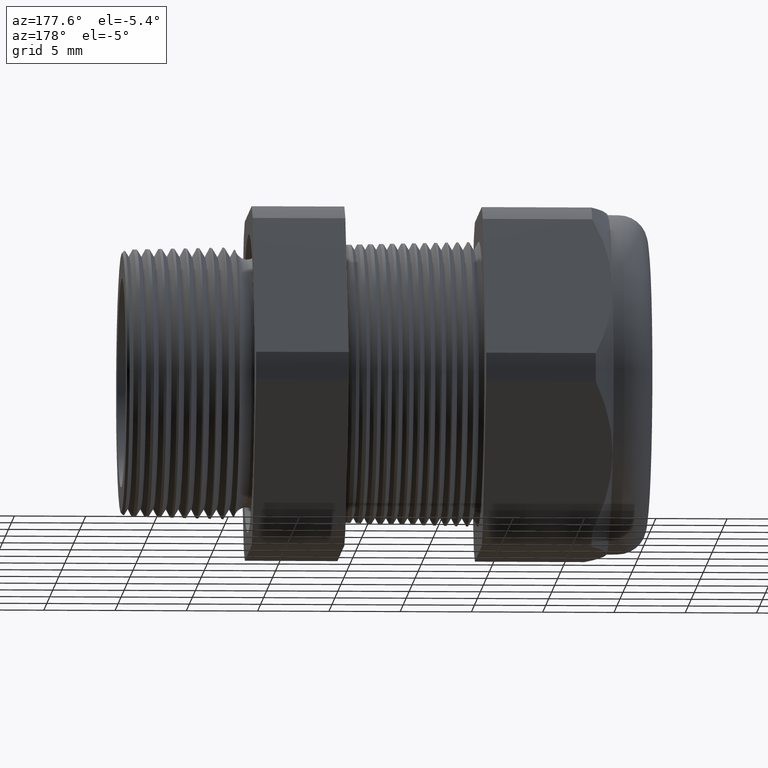
[diagram: clean part render]
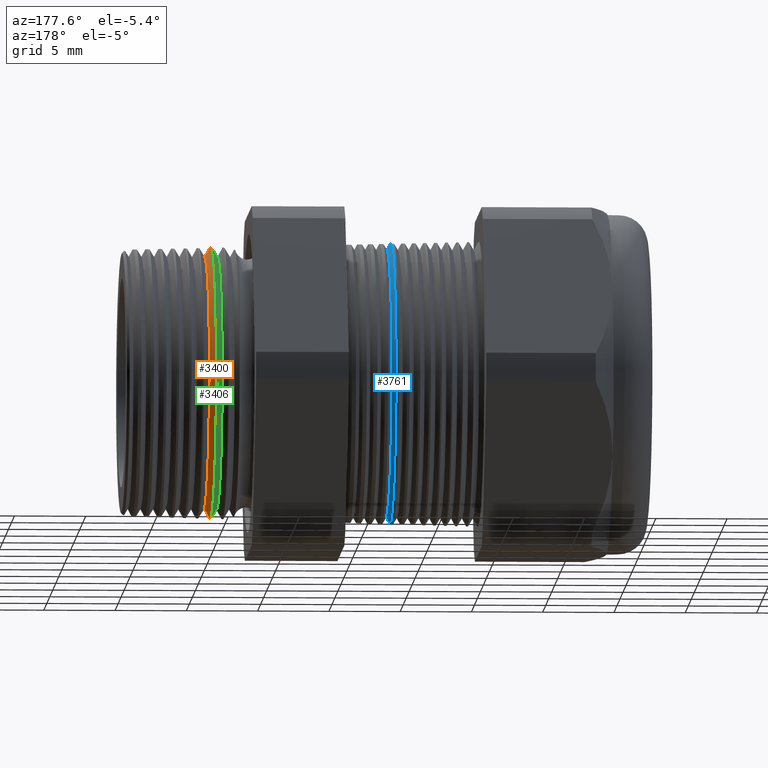
[diagram: same view with three faces highlighted in distinct colors, each labeled with its STEP entity id]
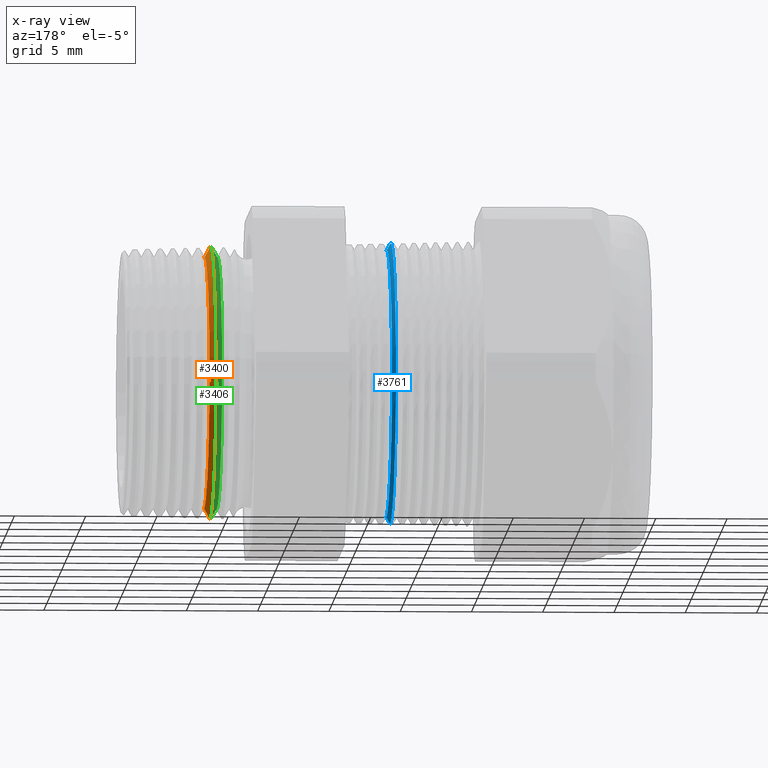
[diagram: x-ray of the same camera — body ghosted, the three highlighted faces saturated]
A machine part, auxiliary view with three faces highlighted in distinct colors.
The next image is the same camera in x-ray (body ghosted, the three faces saturated) — at least one of them is partly hidden behind the body in this view.
Their STEP definitions:

[orange] entity #3400 — the highlighted conical surface has half-angle 61.5 deg.
#3255 = CARTESIAN_POINT ( 'NONE',  ( -0.1884707356790751300, 0.0000000000000000000, 0.3479174816500062400 ) ) ;
#3260 = CARTESIAN_POINT ( 'NONE',  ( -0.1884707356790751300, 4.430091848659464200E-017, -0.3479174816500062400 ) ) ;
#3300 = DIRECTION ( 'NONE',  ( 0.0000000000000000000, 0.0000000000000000000, -1.000000000000000000 ) ) ;
#3301 = DIRECTION ( 'NONE',  ( 1.000000000000000000, 0.0000000000000000000, 0.0000000000000000000 ) ) ;
#3302 = CARTESIAN_POINT ( 'NONE',  ( -0.1884707356790751300, 0.0000000000000000000, 0.0000000000000000000 ) ) ;
#3303 = AXIS2_PLACEMENT_3D ( 'NONE', #3302, #3301, #3300 ) ;
#3304 = CIRCLE ( 'NONE', #3303, 0.3479174816500062400 ) ;
#3397 = EDGE_LOOP ( 'NONE', ( #3420, #3402, #3398, #3408 ) ) ;
#3398 = ORIENTED_EDGE ( 'NONE', *, *, #3409, .T. ) ;
#3399 = VERTEX_POINT ( 'NONE', #5231 ) ;
#3400 = ADVANCED_FACE ( 'NONE', ( #5230 ), #5229, .T. ) ;
#3401 = EDGE_CURVE ( 'NONE', #5438, #3399, #5228, .T. ) ;
#3402 = ORIENTED_EDGE ( 'NONE', *, *, #3401, .T. ) ;
#3407 = EDGE_CURVE ( 'NONE', #5441, #3410, #5213, .T. ) ;
#3408 = ORIENTED_EDGE ( 'NONE', *, *, #3407, .F. ) ;
#3409 = EDGE_CURVE ( 'NONE', #3399, #3410, #5204, .T. ) ;
#3410 = VERTEX_POINT ( 'NONE', #5274 ) ;
#3420 = ORIENTED_EDGE ( 'NONE', *, *, #5448, .F. ) ;
#5200 = DIRECTION ( 'NONE',  ( 0.0000000000000000000, 0.0000000000000000000, 1.000000000000000000 ) ) ;
#5201 = DIRECTION ( 'NONE',  ( 1.000000000000000000, 0.0000000000000000000, 0.0000000000000000000 ) ) ;
#5202 = CARTESIAN_POINT ( 'NONE',  ( -0.2034856000580642600, 0.0000000000000000000, 0.0000000000000000000 ) ) ;
#5203 = AXIS2_PLACEMENT_3D ( 'NONE', #5202, #5201, #5200 ) ;
#5204 = CIRCLE ( 'NONE', #5203, 0.3755714217209684700 ) ;
#5205 = DIRECTION ( 'NONE',  ( -0.4771587602596195100, 0.0000000000000000000, 0.8788171126619593900 ) ) ;
#5206 = VECTOR ( 'NONE', #5205, 39.37007874015748100 ) ;
#5207 = CARTESIAN_POINT ( 'NONE',  ( -0.2049999999999999600, 0.0000000000000000000, 0.3783605994438362700 ) ) ;
#5213 = LINE ( 'NONE', #5207, #5206 ) ;
#5219 = DIRECTION ( 'NONE',  ( -0.4771587602596195100, 1.076240564057387400E-016, -0.8788171126619593900 ) ) ;
#5220 = VECTOR ( 'NONE', #5219, 39.37007874015748100 ) ;
#5222 = CARTESIAN_POINT ( 'NONE',  ( -0.2049999999999999600, 4.633580970323678400E-017, -0.3783605994438362700 ) ) ;
#5223 = DIRECTION ( 'NONE',  ( 0.0000000000000000000, 0.0000000000000000000, 1.000000000000000000 ) ) ;
#5225 = DIRECTION ( 'NONE',  ( -1.000000000000000000, 0.0000000000000000000, 0.0000000000000000000 ) ) ;
#5226 = CARTESIAN_POINT ( 'NONE',  ( -0.2049999999999999600, 0.0000000000000000000, 0.0000000000000000000 ) ) ;
#5227 = AXIS2_PLACEMENT_3D ( 'NONE', #5226, #5225, #5223 ) ;
#5228 = LINE ( 'NONE', #5222, #5220 ) ;
#5229 = CONICAL_SURFACE ( 'NONE', #5227, 0.3783605994438362700, 1.073377489976500100 ) ;
#5230 = FACE_OUTER_BOUND ( 'NONE', #3397, .T. ) ;
#5231 = CARTESIAN_POINT ( 'NONE',  ( -0.2034856000580642600, 4.599902944946639000E-017, -0.3755714217209684700 ) ) ;
#5274 = CARTESIAN_POINT ( 'NONE',  ( -0.2034856000580642600, 0.0000000000000000000, 0.3755714217209684700 ) ) ;
#5438 = VERTEX_POINT ( 'NONE', #3260 ) ;
#5441 = VERTEX_POINT ( 'NONE', #3255 ) ;
#5448 = EDGE_CURVE ( 'NONE', #5438, #5441, #3304, .T. ) ;

[blue] entity #3761 — the highlighted conical surface has half-angle 61.5 deg.
#575 = AXIS2_PLACEMENT_3D ( 'NONE', #638, #637, #636 ) ;
#576 = CONICAL_SURFACE ( 'NONE', #575, 0.3950000000000000200, 1.073377489976499400 ) ;
#577 = LINE ( 'NONE', #635, #634 ) ;
#578 = FACE_OUTER_BOUND ( 'NONE', #3762, .T. ) ;
#617 = DIRECTION ( 'NONE',  ( -0.4771587602596201200, 0.0000000000000000000, 0.8788171126619589400 ) ) ;
#618 = VECTOR ( 'NONE', #617, 39.37007874015748100 ) ;
#619 = CARTESIAN_POINT ( 'NONE',  ( -0.7054330708661417100, 0.0000000000000000000, 0.3950000000000000200 ) ) ;
#620 = LINE ( 'NONE', #619, #618 ) ;
#626 = CARTESIAN_POINT ( 'NONE',  ( -0.7019715852845746000, 0.0000000000000000000, 0.3886247366334452100 ) ) ;
#627 = DIRECTION ( 'NONE',  ( 0.0000000000000000000, 0.0000000000000000000, 1.000000000000000000 ) ) ;
#628 = DIRECTION ( 'NONE',  ( 1.000000000000000000, 0.0000000000000000000, 0.0000000000000000000 ) ) ;
#629 = CARTESIAN_POINT ( 'NONE',  ( -0.7019715852845746000, 0.0000000000000000000, 0.0000000000000000000 ) ) ;
#630 = AXIS2_PLACEMENT_3D ( 'NONE', #629, #628, #627 ) ;
#631 = CIRCLE ( 'NONE', #630, 0.3886247366334452100 ) ;
#632 = CARTESIAN_POINT ( 'NONE',  ( -0.7019715852845746000, 4.760550384735148200E-017, -0.3886247366334452100 ) ) ;
#633 = DIRECTION ( 'NONE',  ( -0.4771587602596201200, 1.076240564057387000E-016, -0.8788171126619589400 ) ) ;
#634 = VECTOR ( 'NONE', #633, 39.37007874015748100 ) ;
#635 = CARTESIAN_POINT ( 'NONE',  ( -0.7054330708661417100, 4.837354856632045600E-017, -0.3950000000000000200 ) ) ;
#636 = DIRECTION ( 'NONE',  ( 0.0000000000000000000, 0.0000000000000000000, 1.000000000000000000 ) ) ;
#637 = DIRECTION ( 'NONE',  ( -1.000000000000000000, 0.0000000000000000000, 0.0000000000000000000 ) ) ;
#638 = CARTESIAN_POINT ( 'NONE',  ( -0.7054330708661417100, 0.0000000000000000000, 0.0000000000000000000 ) ) ;
#3104 = CARTESIAN_POINT ( 'NONE',  ( -0.6916586839320377800, 4.642975682411349600E-017, -0.3696307351718083900 ) ) ;
#3416 = EDGE_CURVE ( 'NONE', #5352, #3418, #5265, .T. ) ;
#3418 = VERTEX_POINT ( 'NONE', #5255 ) ;
#3761 = ADVANCED_FACE ( 'NONE', ( #578 ), #576, .T. ) ;
#3762 = EDGE_LOOP ( 'NONE', ( #3763, #3764, #3767, #3771 ) ) ;
#3763 = ORIENTED_EDGE ( 'NONE', *, *, #3416, .F. ) ;
#3764 = ORIENTED_EDGE ( 'NONE', *, *, #3765, .T. ) ;
#3765 = EDGE_CURVE ( 'NONE', #5352, #3766, #577, .T. ) ;
#3766 = VERTEX_POINT ( 'NONE', #632 ) ;
#3767 = ORIENTED_EDGE ( 'NONE', *, *, #3768, .T. ) ;
#3768 = EDGE_CURVE ( 'NONE', #3766, #3769, #631, .T. ) ;
#3769 = VERTEX_POINT ( 'NONE', #626 ) ;
#3771 = ORIENTED_EDGE ( 'NONE', *, *, #3772, .F. ) ;
#3772 = EDGE_CURVE ( 'NONE', #3418, #3769, #620, .T. ) ;
#5255 = CARTESIAN_POINT ( 'NONE',  ( -0.6916586839320377800, 0.0000000000000000000, 0.3696307351718083900 ) ) ;
#5261 = DIRECTION ( 'NONE',  ( 0.0000000000000000000, 0.0000000000000000000, -1.000000000000000000 ) ) ;
#5262 = DIRECTION ( 'NONE',  ( 1.000000000000000000, 0.0000000000000000000, 0.0000000000000000000 ) ) ;
#5263 = CARTESIAN_POINT ( 'NONE',  ( -0.6916586839320377800, 0.0000000000000000000, 0.0000000000000000000 ) ) ;
#5264 = AXIS2_PLACEMENT_3D ( 'NONE', #5263, #5262, #5261 ) ;
#5265 = CIRCLE ( 'NONE', #5264, 0.3696307351718083900 ) ;
#5352 = VERTEX_POINT ( 'NONE', #3104 ) ;

[green] entity #3406 — the highlighted conical surface has half-angle 58.5 deg.
#5 = VERTEX_POINT ( 'NONE', #5157 ) ;
#6 = EDGE_CURVE ( 'NONE', #26, #5, #5156, .T. ) ;
#7 = ORIENTED_EDGE ( 'NONE', *, *, #9, .F. ) ;
#9 = EDGE_CURVE ( 'NONE', #10, #31, #5144, .T. ) ;
#10 = VERTEX_POINT ( 'NONE', #5139 ) ;
#26 = VERTEX_POINT ( 'NONE', #5179 ) ;
#28 = ORIENTED_EDGE ( 'NONE', *, *, #30, .T. ) ;
#29 = ORIENTED_EDGE ( 'NONE', *, *, #6, .T. ) ;
#30 = EDGE_CURVE ( 'NONE', #10, #26, #5178, .T. ) ;
#31 = VERTEX_POINT ( 'NONE', #5173 ) ;
#34 = EDGE_CURVE ( 'NONE', #5, #31, #5171, .T. ) ;
#3403 = EDGE_LOOP ( 'NONE', ( #28, #29, #5384, #7 ) ) ;
#3406 = ADVANCED_FACE ( 'NONE', ( #5214 ), #5212, .T. ) ;
#5139 = CARTESIAN_POINT ( 'NONE',  ( -0.2234707356790751300, 4.435784777943735500E-017, -0.3479174816500062400 ) ) ;
#5140 = DIRECTION ( 'NONE',  ( 0.5224985647159355900, 0.0000000000000000000, -0.8526401643541005000 ) ) ;
#5141 = VECTOR ( 'NONE', #5140, 39.37007874015747400 ) ;
#5143 = CARTESIAN_POINT ( 'NONE',  ( -0.2234707356790751300, 0.0000000000000000000, -0.3479174816500062400 ) ) ;
#5144 = LINE ( 'NONE', #5143, #5141 ) ;
#5153 = DIRECTION ( 'NONE',  ( 0.5224985647159355900, 1.044183048100722300E-016, 0.8526401643541005000 ) ) ;
#5154 = VECTOR ( 'NONE', #5153, 39.37007874015747400 ) ;
#5155 = CARTESIAN_POINT ( 'NONE',  ( -0.2234707356790751300, 4.260760302700881100E-017, 0.3479174816500062400 ) ) ;
#5156 = LINE ( 'NONE', #5155, #5154 ) ;
#5157 = CARTESIAN_POINT ( 'NONE',  ( -0.2064763869881502400, 0.0000000000000000000, 0.3756497382329497800 ) ) ;
#5168 = DIRECTION ( 'NONE',  ( -1.000000000000000000, 0.0000000000000000000, 0.0000000000000000000 ) ) ;
#5169 = CARTESIAN_POINT ( 'NONE',  ( -0.2064763869881502400, 0.0000000000000000000, 0.0000000000000000000 ) ) ;
#5170 = AXIS2_PLACEMENT_3D ( 'NONE', #5169, #5168, #5233 ) ;
#5171 = CIRCLE ( 'NONE', #5170, 0.3756497382329498400 ) ;
#5173 = CARTESIAN_POINT ( 'NONE',  ( -0.2064763869881502400, 4.600382495275230100E-017, -0.3756497382329497800 ) ) ;
#5174 = DIRECTION ( 'NONE',  ( 0.0000000000000000000, 0.0000000000000000000, -1.000000000000000000 ) ) ;
#5175 = DIRECTION ( 'NONE',  ( 1.000000000000000000, 0.0000000000000000000, 0.0000000000000000000 ) ) ;
#5176 = CARTESIAN_POINT ( 'NONE',  ( -0.2234707356790751300, 0.0000000000000000000, 0.0000000000000000000 ) ) ;
#5177 = AXIS2_PLACEMENT_3D ( 'NONE', #5176, #5175, #5174 ) ;
#5178 = CIRCLE ( 'NONE', #5177, 0.3479174816500062400 ) ;
#5179 = CARTESIAN_POINT ( 'NONE',  ( -0.2234707356790751300, 0.0000000000000000000, 0.3479174816500062400 ) ) ;
#5208 = DIRECTION ( 'NONE',  ( 0.0000000000000000000, 0.0000000000000000000, -1.000000000000000000 ) ) ;
#5209 = DIRECTION ( 'NONE',  ( 1.000000000000000000, 0.0000000000000000000, 0.0000000000000000000 ) ) ;
#5210 = CARTESIAN_POINT ( 'NONE',  ( -0.2234707356790751300, 0.0000000000000000000, 0.0000000000000000000 ) ) ;
#5211 = AXIS2_PLACEMENT_3D ( 'NONE', #5210, #5209, #5208 ) ;
#5212 = CONICAL_SURFACE ( 'NONE', #5211, 0.3479174816500062400, 1.021017612416698500 ) ;
#5214 = FACE_OUTER_BOUND ( 'NONE', #3403, .T. ) ;
#5233 = DIRECTION ( 'NONE',  ( 0.0000000000000000000, 0.0000000000000000000, -1.000000000000000000 ) ) ;
#5384 = ORIENTED_EDGE ( 'NONE', *, *, #34, .T. ) ;